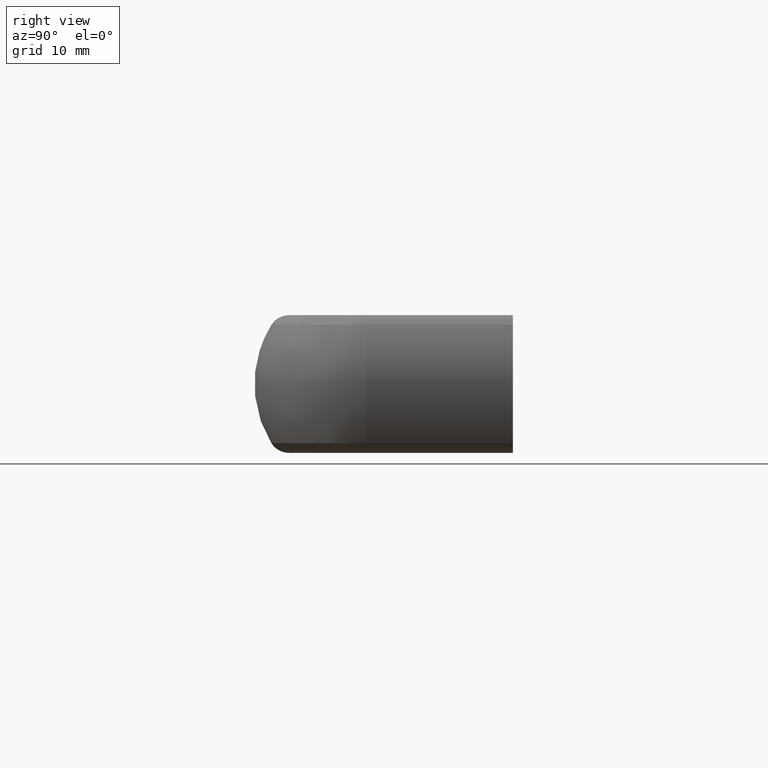
[diagram: clean part render]
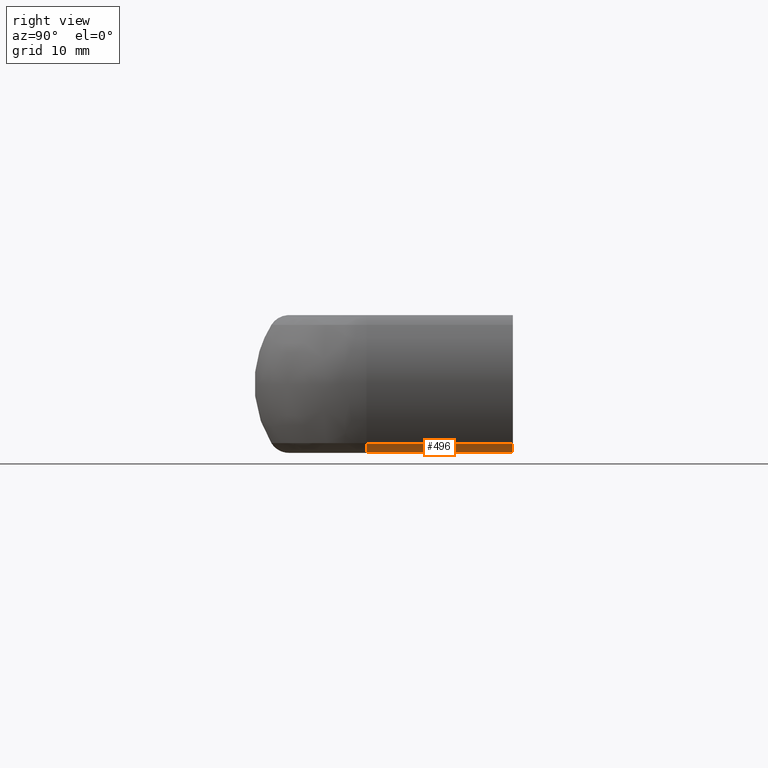
[diagram: same view with one face highlighted and labeled with its STEP entity id]
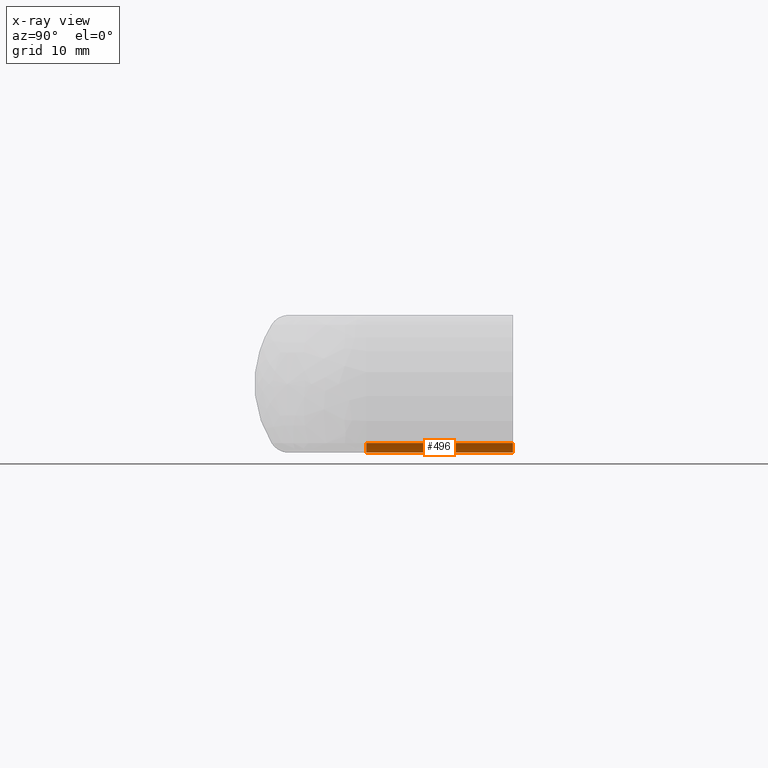
[diagram: x-ray of the same camera — body ghosted, the highlighted face saturated]
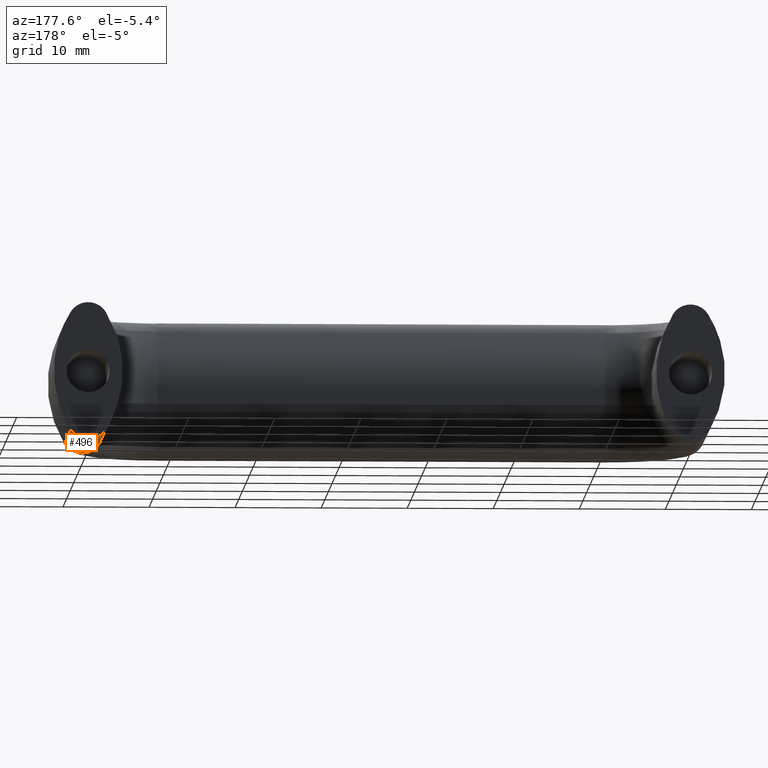
[diagram: same view with one face highlighted and labeled with its STEP entity id]
A machine part, right view. The second image highlights one B-rep face of the part: STEP entity #496.
The next image is the same camera in x-ray: the body ghosted, the highlighted face saturated — about 0% of this face is hidden behind the body in this view.
A second angle (auxiliary view) of the same face is appended — the face is thin or edge-on in the first view.
In plain terms, the highlighted face is a freeform B-spline surface patch.
Its self-contained STEP definition (entity closure, byte-faithful):
#432=CARTESIAN_POINT('',(67.908897532796402,-17.425000000000001,-6.777832955751788));
#433=CARTESIAN_POINT('',(67.908897532796402,0.435625000000009,-6.777832955751788));
#434=CARTESIAN_POINT('',(70.033764432705112,-17.425000000000004,-10.550281667752941));
#435=CARTESIAN_POINT('',(70.033764432705112,0.435625000000009,-10.550281667752941));
#436=CARTESIAN_POINT('',(72.106974476572361,-17.425000000000001,-6.749199092878392));
#437=CARTESIAN_POINT('',(72.106974476572361,0.435625000000009,-6.749199092878392));
#445=(BOUNDED_SURFACE()B_SPLINE_SURFACE(1,2,((#432,#434,#436),(#433,#435,#437)),.UNSPECIFIED.,.F.,.F.,.U.)B_SPLINE_SURFACE_WITH_KNOTS((2,2),(3,3),(0.0,17.860625000000010),(0.0,5.654832157637261),.UNSPECIFIED.)GEOMETRIC_REPRESENTATION_ITEM()RATIONAL_B_SPLINE_SURFACE(((1.0,0.484809620246338,1.0),(1.0,0.484809620246338,1.0)))REPRESENTATION_ITEM('')SURFACE());
#446=CARTESIAN_POINT('',(67.962264150943412,6.938894E-015,-6.867924528301880));
#447=VERTEX_POINT('',#446);
#448=CARTESIAN_POINT('',(72.037735849056602,6.938894E-015,-6.867924528301869));
#449=VERTEX_POINT('',#448);
#450=CARTESIAN_POINT('',(67.962264150943412,6.938894E-015,-6.867924528301884));
#451=CARTESIAN_POINT('',(68.666666666666671,6.938894E-015,-8.0));
#452=CARTESIAN_POINT('',(70.0,6.938894E-015,-8.0));
#453=CARTESIAN_POINT('',(71.333333333333343,6.938894E-015,-8.0));
#454=CARTESIAN_POINT('',(72.037735849056617,6.938894E-015,-6.867924528301876));
#462=(BOUNDED_CURVE()B_SPLINE_CURVE(2,(#450,#451,#452,#453,#454),.UNSPECIFIED.,.F.,.U.)B_SPLINE_CURVE_WITH_KNOTS((3,2,3),(0.0,0.500000000000000,1.0),.UNSPECIFIED.)CURVE()GEOMETRIC_REPRESENTATION_ITEM()RATIONAL_B_SPLINE_CURVE((1.0,0.874157276121537,1.0,0.874157276121537,1.0))REPRESENTATION_ITEM(''));
#463=EDGE_CURVE('',#447,#449,#462,.T.);
#464=ORIENTED_EDGE('',*,*,#463,.T.);
#465=CARTESIAN_POINT('',(72.037735849056602,-17.0,-6.867924528301869));
#466=VERTEX_POINT('',#465);
#467=CARTESIAN_POINT('',(72.037735849056602,-17.0,-6.867924528301869));
#468=CARTESIAN_POINT('',(72.037735849056602,6.938894E-015,-6.867924528301869));
#469=QUASI_UNIFORM_CURVE('',1,(#467,#468),.UNSPECIFIED.,.F.,.U.);
#470=EDGE_CURVE('',#466,#449,#469,.T.);
#471=ORIENTED_EDGE('',*,*,#470,.F.);
#472=CARTESIAN_POINT('',(67.962264150943412,-17.0,-6.867924528301880));
#473=VERTEX_POINT('',#472);
#474=CARTESIAN_POINT('',(67.962264150943412,-17.0,-6.867924528301884));
#475=CARTESIAN_POINT('',(68.666666666666671,-17.000000000000004,-8.0));
#476=CARTESIAN_POINT('',(70.0,-17.0,-8.0));
#477=CARTESIAN_POINT('',(71.333333333333343,-17.000000000000004,-8.0));
#478=CARTESIAN_POINT('',(72.037735849056617,-17.0,-6.867924528301876));
#486=(BOUNDED_CURVE()B_SPLINE_CURVE(2,(#474,#475,#476,#477,#478),.UNSPECIFIED.,.F.,.U.)B_SPLINE_CURVE_WITH_KNOTS((3,2,3),(0.0,0.500000000000000,1.0),.UNSPECIFIED.)CURVE()GEOMETRIC_REPRESENTATION_ITEM()RATIONAL_B_SPLINE_CURVE((1.0,0.874157276121537,1.0,0.874157276121537,1.0))REPRESENTATION_ITEM(''));
#487=EDGE_CURVE('',#473,#466,#486,.T.);
#488=ORIENTED_EDGE('',*,*,#487,.F.);
#489=CARTESIAN_POINT('',(67.962264150943412,-17.0,-6.867924528301880));
#490=CARTESIAN_POINT('',(67.962264150943412,6.938894E-015,-6.867924528301880));
#491=QUASI_UNIFORM_CURVE('',1,(#489,#490),.UNSPECIFIED.,.F.,.U.);
#492=EDGE_CURVE('',#473,#447,#491,.T.);
#493=ORIENTED_EDGE('',*,*,#492,.T.);
#494=EDGE_LOOP('',(#464,#471,#488,#493));
#495=FACE_OUTER_BOUND('',#494,.T.);
#496=ADVANCED_FACE('',(#495),#445,.T.);